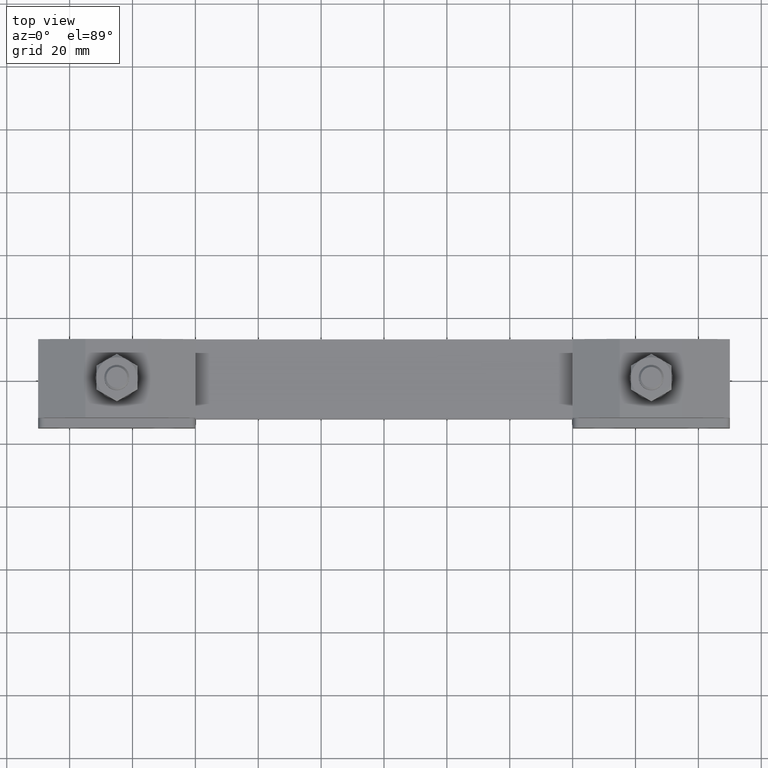
[diagram: clean part render]
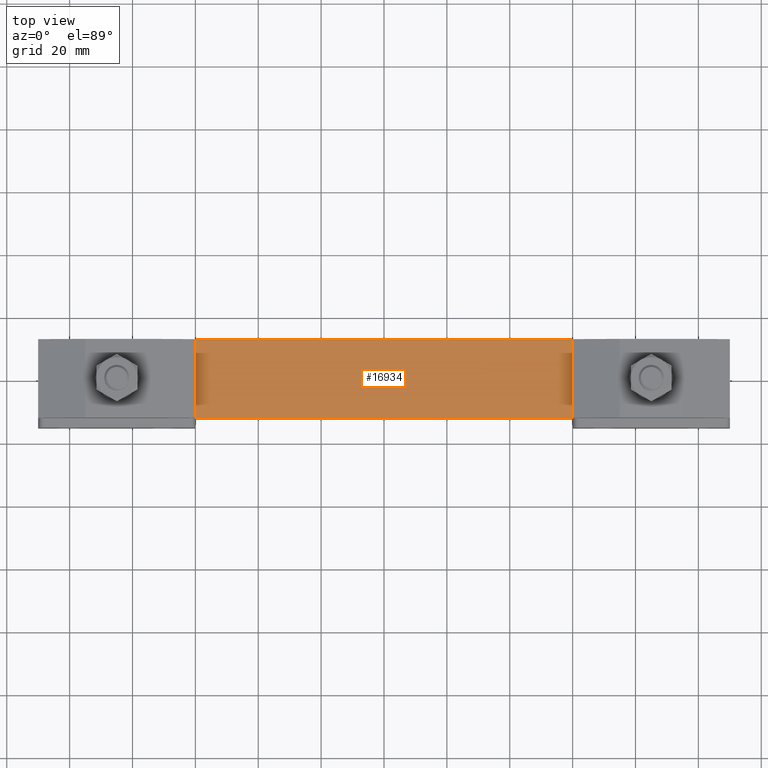
[diagram: same view with one face highlighted and labeled with its STEP entity id]
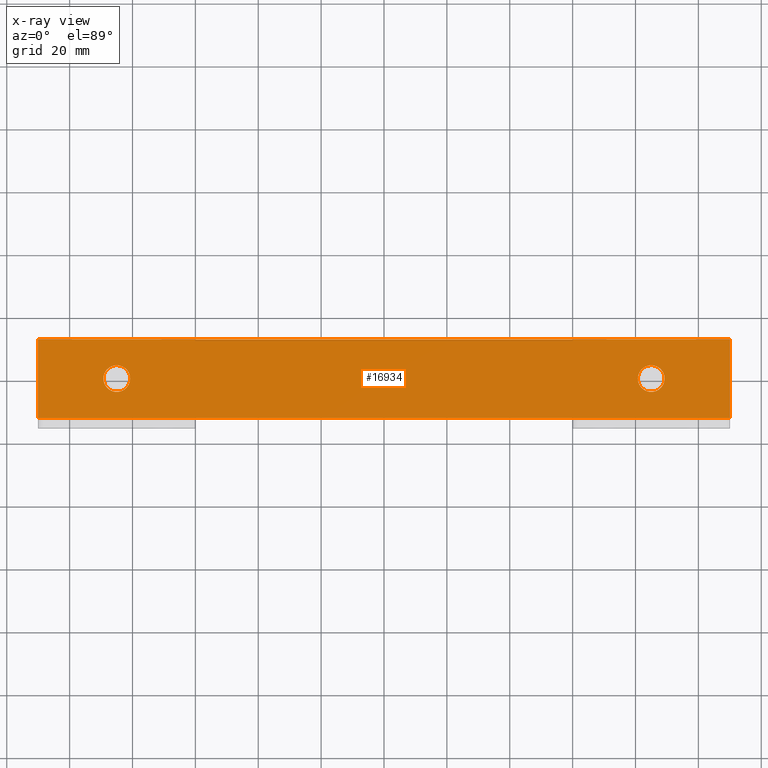
[diagram: x-ray of the same camera — body ghosted, the highlighted face saturated]
A machine part, top view. The second image highlights one B-rep face of the part: STEP entity #16934.
The next image is the same camera in x-ray: the body ghosted, the highlighted face saturated — about 0% of this face is hidden behind the body in this view.
In plain terms, the highlighted planar face has unit normal (0, 0, 1).
Its self-contained STEP definition (entity closure, byte-faithful):
#337 = VECTOR ( 'NONE', #1404, 1000.000000000000000 ) ;
#851 = CARTESIAN_POINT ( 'NONE',  ( -110.0000000000000000, 12.50000000000000000, 26.00000000000000000 ) ) ;
#872 = VERTEX_POINT ( 'NONE', #910 ) ;
#910 = CARTESIAN_POINT ( 'NONE',  ( 110.0000000000000000, -12.50000000000000000, 26.00000000000000000 ) ) ;
#1404 = DIRECTION ( 'NONE',  ( 0.0000000000000000000, 1.000000000000000000, 0.0000000000000000000 ) ) ;
#1449 = ORIENTED_EDGE ( 'NONE', *, *, #8836, .T. ) ;
#2423 = DIRECTION ( 'NONE',  ( -1.000000000000000000, 0.0000000000000000000, 0.0000000000000000000 ) ) ;
#2728 = FACE_OUTER_BOUND ( 'NONE', #15585, .T. ) ;
#3020 = EDGE_CURVE ( 'NONE', #17026, #872, #7549, .T. ) ;
#3098 = CIRCLE ( 'NONE', #8749, 4.250000000000003600 ) ;
#3118 = LINE ( 'NONE', #851, #4720 ) ;
#3408 = CARTESIAN_POINT ( 'NONE',  ( -110.0000000000000000, -12.50000000000000000, 26.00000000000000000 ) ) ;
#3595 = CARTESIAN_POINT ( 'NONE',  ( 89.25000000000001400, 2.133878290461802200E-014, 26.00000000000000000 ) ) ;
#3821 = AXIS2_PLACEMENT_3D ( 'NONE', #8411, #15401, #11828 ) ;
#4258 = CIRCLE ( 'NONE', #8443, 4.250000000000003600 ) ;
#4590 = FACE_BOUND ( 'NONE', #18600, .T. ) ;
#4720 = VECTOR ( 'NONE', #6075, 1000.000000000000000 ) ;
#4855 = CIRCLE ( 'NONE', #3821, 4.250000000000003600 ) ;
#5053 = DIRECTION ( 'NONE',  ( 0.0000000000000000000, 0.0000000000000000000, 1.000000000000000000 ) ) ;
#5084 = EDGE_CURVE ( 'NONE', #872, #21295, #12848, .T. ) ;
#5159 = EDGE_CURVE ( 'NONE', #16149, #9565, #4855, .T. ) ;
#5239 = CARTESIAN_POINT ( 'NONE',  ( -110.0000000000000000, -12.50000000000000000, 26.00000000000000000 ) ) ;
#5471 = ORIENTED_EDGE ( 'NONE', *, *, #18507, .T. ) ;
#6075 = DIRECTION ( 'NONE',  ( 0.0000000000000000000, -1.000000000000000000, 0.0000000000000000000 ) ) ;
#6806 = DIRECTION ( 'NONE',  ( 1.000000000000000000, 0.0000000000000000000, 0.0000000000000000000 ) ) ;
#6867 = CARTESIAN_POINT ( 'NONE',  ( -80.75000000000000000, 5.204748896376247700E-016, 26.00000000000000000 ) ) ;
#7219 = CARTESIAN_POINT ( 'NONE',  ( -110.0000000000000000, -12.50000000000000000, 26.00000000000000000 ) ) ;
#7512 = EDGE_CURVE ( 'NONE', #21295, #21531, #17784, .T. ) ;
#7540 = DIRECTION ( 'NONE',  ( 0.0000000000000000000, 0.0000000000000000000, -1.000000000000000000 ) ) ;
#7549 = LINE ( 'NONE', #5239, #9146 ) ;
#7723 = DIRECTION ( 'NONE',  ( 0.0000000000000000000, 0.0000000000000000000, -1.000000000000000000 ) ) ;
#7951 = DIRECTION ( 'NONE',  ( -1.000000000000000000, 0.0000000000000000000, 0.0000000000000000000 ) ) ;
#8411 = CARTESIAN_POINT ( 'NONE',  ( -85.00000000000000000, 0.0000000000000000000, 26.00000000000000000 ) ) ;
#8443 = AXIS2_PLACEMENT_3D ( 'NONE', #14488, #7723, #2423 ) ;
#8749 = AXIS2_PLACEMENT_3D ( 'NONE', #17655, #7540, #14378 ) ;
#8836 = EDGE_CURVE ( 'NONE', #16721, #20346, #21723, .T. ) ;
#9146 = VECTOR ( 'NONE', #6806, 1000.000000000000000 ) ;
#9565 = VERTEX_POINT ( 'NONE', #6867 ) ;
#9691 = ORIENTED_EDGE ( 'NONE', *, *, #7512, .T. ) ;
#9748 = CARTESIAN_POINT ( 'NONE',  ( 110.0000000000000000, 12.50000000000000000, 26.00000000000000000 ) ) ;
#11127 = ORIENTED_EDGE ( 'NONE', *, *, #13448, .T. ) ;
#11547 = CARTESIAN_POINT ( 'NONE',  ( 80.75000000000000000, 2.081830801498040100E-014, 26.00000000000000000 ) ) ;
#11828 = DIRECTION ( 'NONE',  ( -1.000000000000000000, 0.0000000000000000000, 0.0000000000000000000 ) ) ;
#11973 = ORIENTED_EDGE ( 'NONE', *, *, #3020, .T. ) ;
#12848 = LINE ( 'NONE', #9748, #337 ) ;
#13448 = EDGE_CURVE ( 'NONE', #21531, #17026, #3118, .T. ) ;
#13765 = ORIENTED_EDGE ( 'NONE', *, *, #5159, .T. ) ;
#13987 = EDGE_CURVE ( 'NONE', #9565, #16149, #3098, .T. ) ;
#14177 = AXIS2_PLACEMENT_3D ( 'NONE', #19972, #14710, #7951 ) ;
#14184 = FACE_BOUND ( 'NONE', #16279, .T. ) ;
#14378 = DIRECTION ( 'NONE',  ( -1.000000000000000000, 0.0000000000000000000, 0.0000000000000000000 ) ) ;
#14488 = CARTESIAN_POINT ( 'NONE',  ( 85.00000000000000000, 2.081830801498040100E-014, 26.00000000000000000 ) ) ;
#14710 = DIRECTION ( 'NONE',  ( 0.0000000000000000000, 0.0000000000000000000, -1.000000000000000000 ) ) ;
#14961 = AXIS2_PLACEMENT_3D ( 'NONE', #3408, #5053, #18726 ) ;
#15401 = DIRECTION ( 'NONE',  ( 0.0000000000000000000, 0.0000000000000000000, -1.000000000000000000 ) ) ;
#15585 = EDGE_LOOP ( 'NONE', ( #11127, #11973, #17522, #9691 ) ) ;
#15653 = ORIENTED_EDGE ( 'NONE', *, *, #13987, .T. ) ;
#16149 = VERTEX_POINT ( 'NONE', #21233 ) ;
#16170 = VECTOR ( 'NONE', #16636, 1000.000000000000000 ) ;
#16279 = EDGE_LOOP ( 'NONE', ( #1449, #5471 ) ) ;
#16636 = DIRECTION ( 'NONE',  ( -1.000000000000000000, 5.519574696289839900E-017, 0.0000000000000000000 ) ) ;
#16721 = VERTEX_POINT ( 'NONE', #11547 ) ;
#16828 = PLANE ( 'NONE',  #14961 ) ;
#16934 = ADVANCED_FACE ( 'NONE', ( #4590, #14184, #2728 ), #16828, .T. ) ;
#17026 = VERTEX_POINT ( 'NONE', #7219 ) ;
#17522 = ORIENTED_EDGE ( 'NONE', *, *, #5084, .T. ) ;
#17655 = CARTESIAN_POINT ( 'NONE',  ( -85.00000000000000000, 0.0000000000000000000, 26.00000000000000000 ) ) ;
#17784 = LINE ( 'NONE', #21541, #16170 ) ;
#18507 = EDGE_CURVE ( 'NONE', #20346, #16721, #4258, .T. ) ;
#18600 = EDGE_LOOP ( 'NONE', ( #13765, #15653 ) ) ;
#18726 = DIRECTION ( 'NONE',  ( 1.000000000000000000, 0.0000000000000000000, 0.0000000000000000000 ) ) ;
#19659 = CARTESIAN_POINT ( 'NONE',  ( 110.0000000000000000, 12.50000000000000000, 26.00000000000000000 ) ) ;
#19972 = CARTESIAN_POINT ( 'NONE',  ( 85.00000000000000000, 2.081830801498040100E-014, 26.00000000000000000 ) ) ;
#20346 = VERTEX_POINT ( 'NONE', #3595 ) ;
#20421 = CARTESIAN_POINT ( 'NONE',  ( -110.0000000000000000, 12.50000000000000000, 26.00000000000000000 ) ) ;
#21233 = CARTESIAN_POINT ( 'NONE',  ( -89.25000000000001400, 0.0000000000000000000, 26.00000000000000000 ) ) ;
#21295 = VERTEX_POINT ( 'NONE', #19659 ) ;
#21531 = VERTEX_POINT ( 'NONE', #20421 ) ;
#21541 = CARTESIAN_POINT ( 'NONE',  ( -110.0000000000000000, 12.50000000000000000, 26.00000000000000000 ) ) ;
#21723 = CIRCLE ( 'NONE', #14177, 4.250000000000003600 ) ;